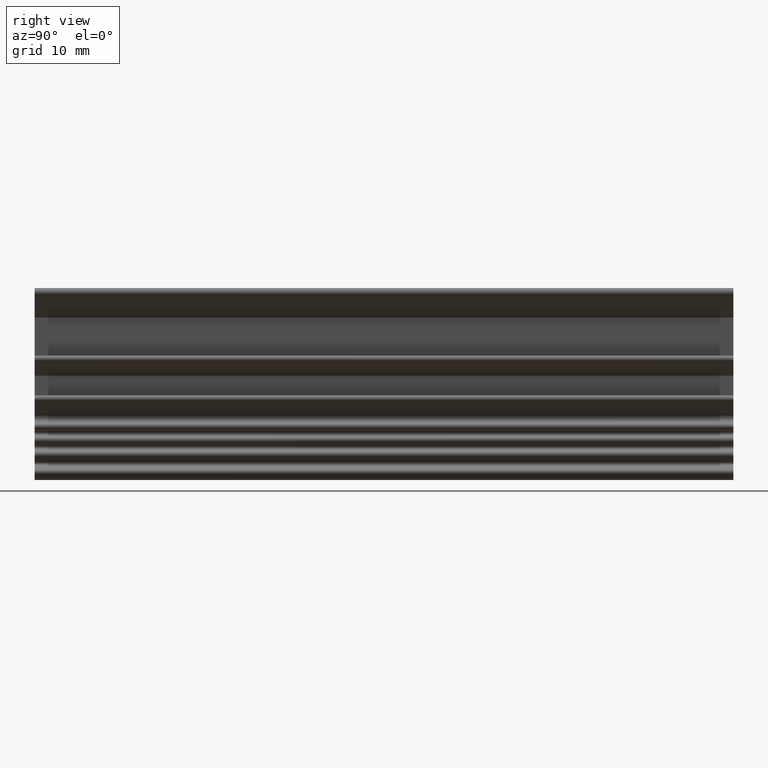
[diagram: clean part render]
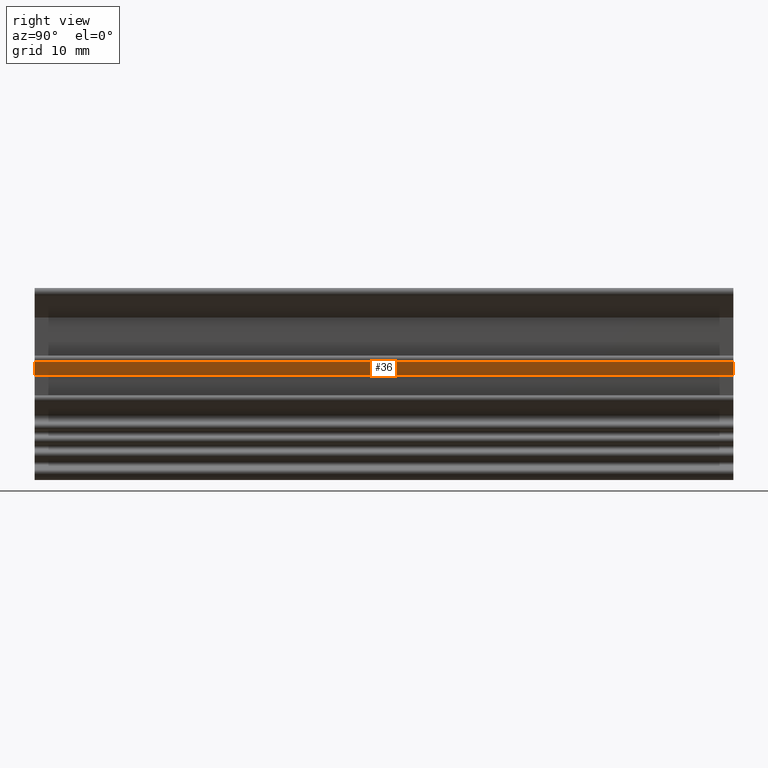
[diagram: same view with one face highlighted and labeled with its STEP entity id]
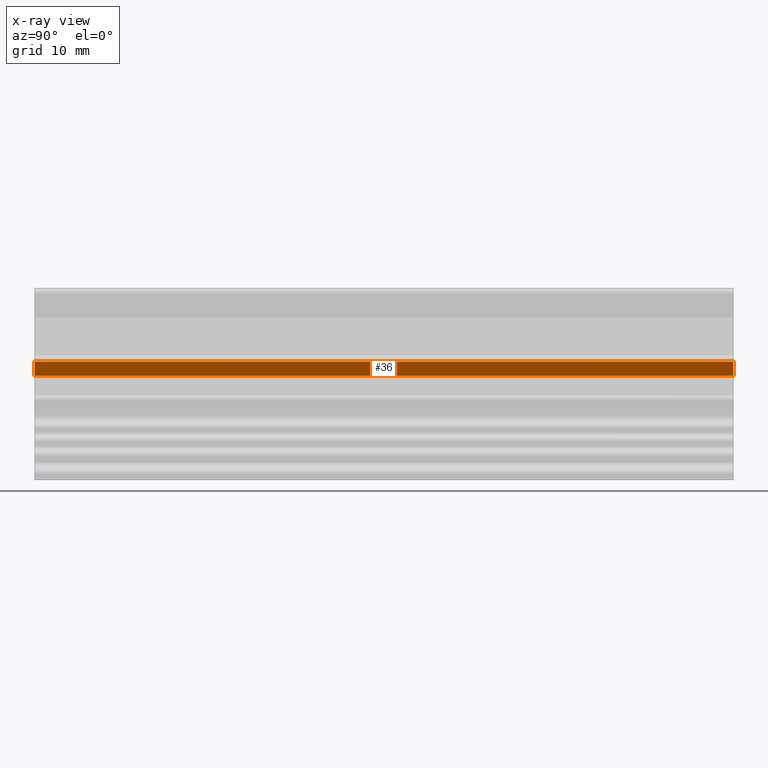
[diagram: x-ray of the same camera — body ghosted, the highlighted face saturated]
A machine part, right view. The second image highlights one B-rep face of the part: STEP entity #36.
The next image is the same camera in x-ray: the body ghosted, the highlighted face saturated — about 0% of this face is hidden behind the body in this view.
In plain terms, the highlighted planar face has unit normal (-0.6505, 0, 0.7595).
Its self-contained STEP definition (entity closure, byte-faithful):
#36 = ADVANCED_FACE ( 'NONE', ( #2081 ), #855, .F. ) ;
#147 = AXIS2_PLACEMENT_3D ( 'NONE', #863, #841, #840 ) ;
#308 = ORIENTED_EDGE ( 'NONE', *, *, #619, .T. ) ;
#334 = ORIENTED_EDGE ( 'NONE', *, *, #592, .F. ) ;
#373 = EDGE_LOOP ( 'NONE', ( #308, #410, #558, #334 ) ) ;
#410 = ORIENTED_EDGE ( 'NONE', *, *, #624, .F. ) ;
#558 = ORIENTED_EDGE ( 'NONE', *, *, #611, .F. ) ;
#592 = EDGE_CURVE ( 'NONE', #1006, #997, #1875, .T. ) ;
#611 = EDGE_CURVE ( 'NONE', #997, #1045, #1817, .T. ) ;
#619 = EDGE_CURVE ( 'NONE', #1006, #1010, #1917, .T. ) ;
#624 = EDGE_CURVE ( 'NONE', #1045, #1010, #1941, .T. ) ;
#840 = DIRECTION ( 'NONE',  ( 0.7594936582987095200, 0.0000000000000000000, 0.6505147062165797000 ) ) ;
#841 = DIRECTION ( 'NONE',  ( -0.6505147062165797000, 0.0000000000000000000, 0.7594936582987095200 ) ) ;
#855 = PLANE ( 'NONE',  #147 ) ;
#863 = CARTESIAN_POINT ( 'NONE',  ( 1.166530621958690200, 80.00000000000000000, 13.51260958264820100 ) ) ;
#997 = VERTEX_POINT ( 'NONE', #1562 ) ;
#1006 = VERTEX_POINT ( 'NONE', #1558 ) ;
#1010 = VERTEX_POINT ( 'NONE', #1556 ) ;
#1045 = VERTEX_POINT ( 'NONE', #1546 ) ;
#1332 = CARTESIAN_POINT ( 'NONE',  ( -0.6795639554795279700, 80.00000000000000000, 11.93140918871830000 ) ) ;
#1340 = DIRECTION ( 'NONE',  ( 0.7594936582989938500, 0.0000000000000000000, 0.6505147062162477400 ) ) ;
#1342 = CARTESIAN_POINT ( 'NONE',  ( -0.6795639554795279700, 0.0000000000000000000, 11.93140918871830000 ) ) ;
#1367 = CARTESIAN_POINT ( 'NONE',  ( 1.166530621958690200, 80.00000000000000000, 13.51260958264820100 ) ) ;
#1546 = CARTESIAN_POINT ( 'NONE',  ( 1.166530621958502100, 3.469446951953614200E-015, 13.51260958264803900 ) ) ;
#1556 = CARTESIAN_POINT ( 'NONE',  ( 1.166530621958502100, 80.00000000000000000, 13.51260958264803900 ) ) ;
#1558 = CARTESIAN_POINT ( 'NONE',  ( -0.6795639554792969300, 80.00000000000000000, 11.93140918871794300 ) ) ;
#1562 = CARTESIAN_POINT ( 'NONE',  ( -0.6795639554792970400, 0.0000000000000000000, 11.93140918871803200 ) ) ;
#1667 = DIRECTION ( 'NONE',  ( 0.0000000000000000000, 1.000000000000000000, -0.0000000000000000000 ) ) ;
#1686 = DIRECTION ( 'NONE',  ( 0.7594936582989938500, 0.0000000000000000000, 0.6505147062162477400 ) ) ;
#1816 = VECTOR ( 'NONE', #1340, 1000.000000000000100 ) ;
#1817 = LINE ( 'NONE', #1342, #1816 ) ;
#1831 = VECTOR ( 'NONE', #1686, 1000.000000000000100 ) ;
#1875 = LINE ( 'NONE', #1959, #1898 ) ;
#1898 = VECTOR ( 'NONE', #1970, 1000.000000000000000 ) ;
#1917 = LINE ( 'NONE', #1332, #1831 ) ;
#1941 = LINE ( 'NONE', #1367, #1955 ) ;
#1955 = VECTOR ( 'NONE', #1667, 1000.000000000000000 ) ;
#1959 = CARTESIAN_POINT ( 'NONE',  ( -0.6795639554788368600, 80.00000000000000000, 11.93140918871749400 ) ) ;
#1970 = DIRECTION ( 'NONE',  ( -0.0000000000000000000, -1.000000000000000000, 0.0000000000000000000 ) ) ;
#2081 = FACE_OUTER_BOUND ( 'NONE', #373, .T. ) ;